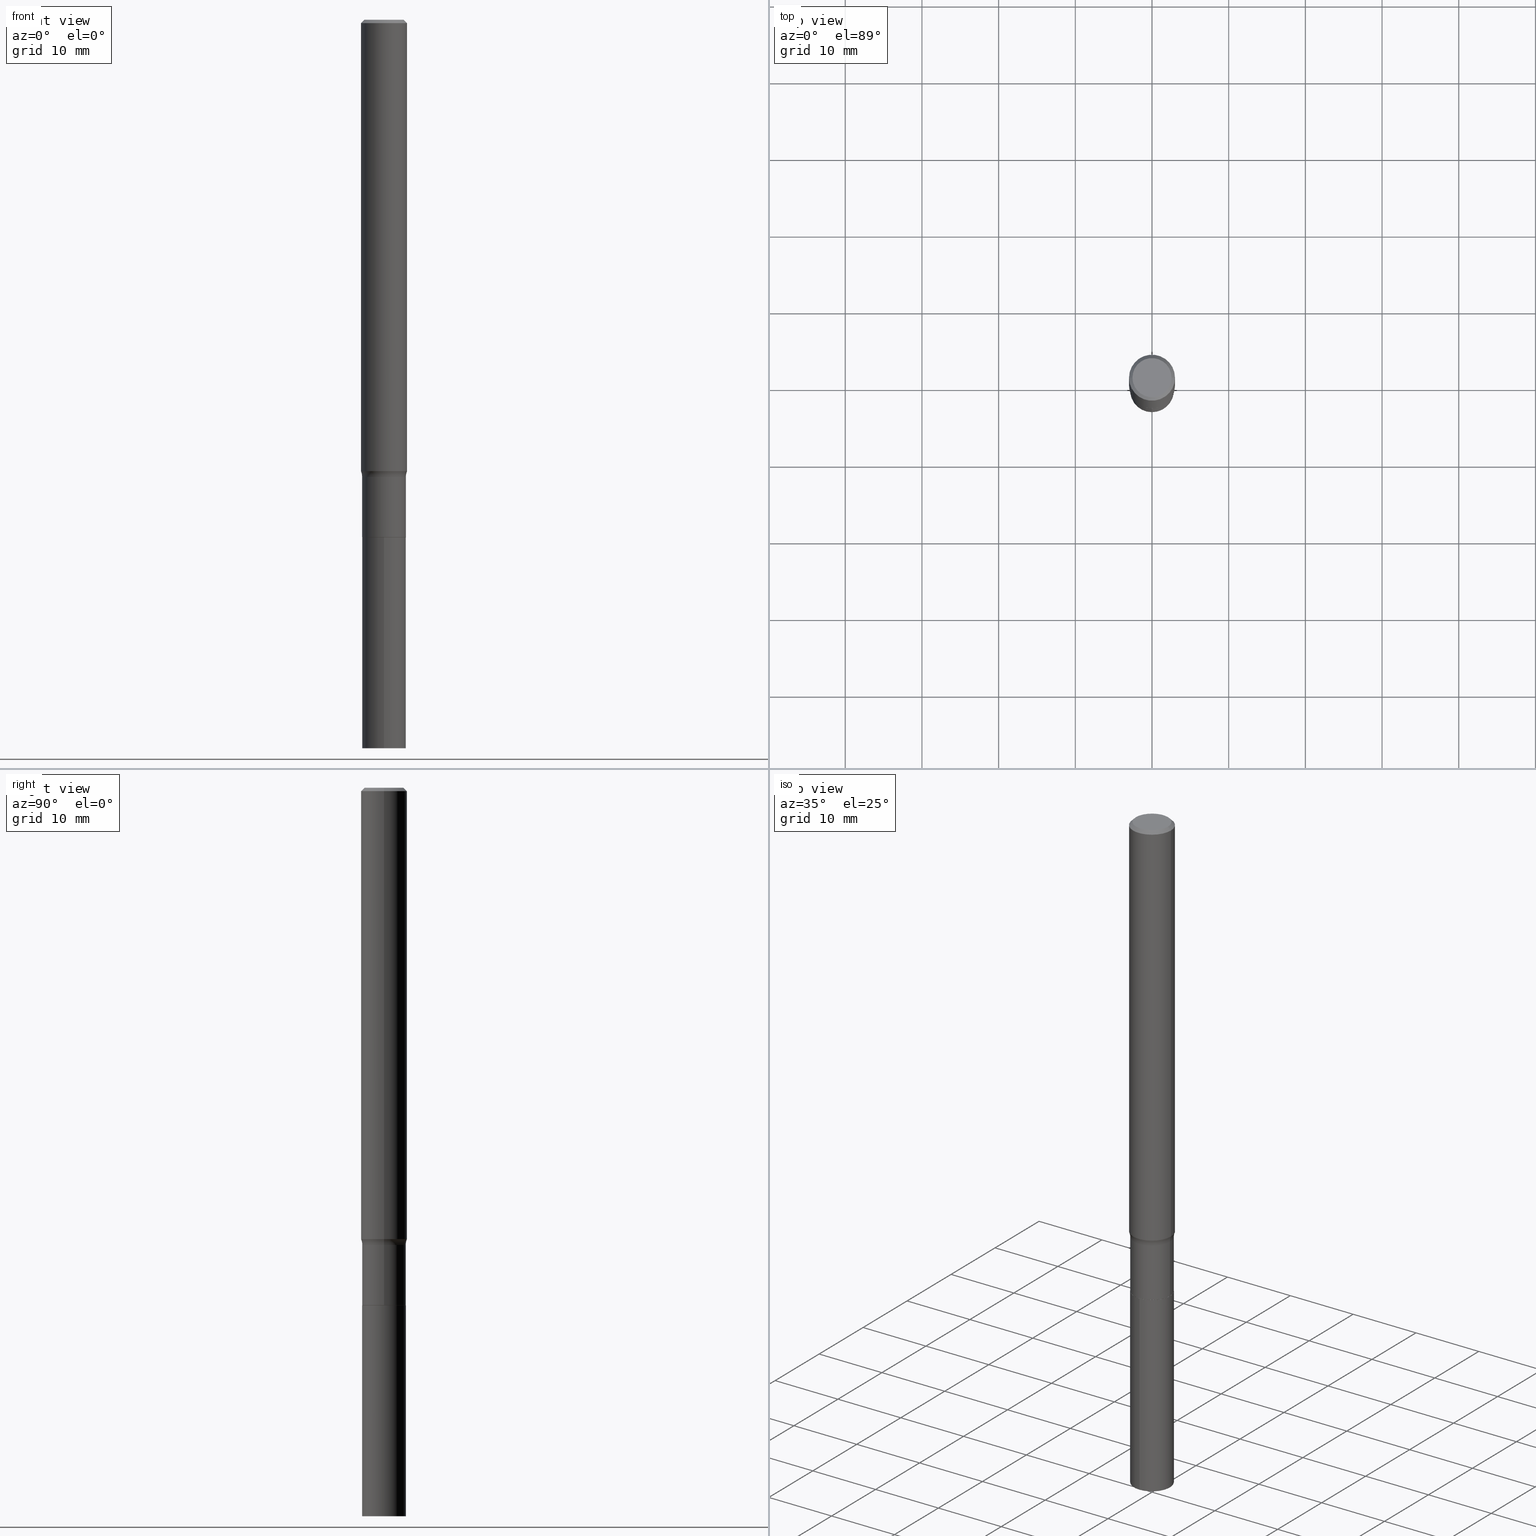
[diagram: canonical four-view strip — front | top / right | iso, engineering-drawing reading convention]
A machine part, canonical four-view strip (front | top / right | iso — engineering-drawing reading convention). The complete STEP part file that produces these views, byte-faithful:
ISO-10303-21;
HEADER;
FILE_DESCRIPTION (( 'STEP AP203' ),
    '1' );
FILE_NAME ('67843.STEP',
    '2024-04-19T16:41:53',
    ( '' ),
    ( '' ),
    'SwSTEP 2.0',
    'SolidWorks 2023',
    '' );
FILE_SCHEMA (( 'CONFIG_CONTROL_DESIGN' ));
ENDSEC;

DATA;
#1 = ORIENTED_EDGE ( 'NONE', *, *, #78, .F. ) ;
#2 = ADVANCED_FACE ( 'NONE', ( #265 ), #373, .F. ) ;
#3 = EDGE_LOOP ( 'NONE', ( #48, #410, #38, #193 ) ) ;
#4 = EDGE_LOOP ( 'NONE', ( #112, #189, #398, #390 ) ) ;
#5 = PERSON_AND_ORGANIZATION ( #21, #51 ) ;
#6 = LINE ( 'NONE', #372, #236 ) ;
#7 = DIRECTION ( 'NONE',  ( -2.445468806185136597E-29, 3.491481338843145583E-15, 1.000000000000000000 ) ) ;
#8 = CIRCLE ( 'NONE', #416, 0.1181000000000003020 ) ;
#9 = DIRECTION ( 'NONE',  ( -2.439359682835014967E-29, 3.500229951190227507E-15, 1.000000000000000000 ) ) ;
#10 = CARTESIAN_POINT ( 'NONE',  ( 5.740738022519607668E-29, -8.196252442934283477E-15, -2.347500000000000142 ) ) ;
#11 = ORIENTED_EDGE ( 'NONE', *, *, #151, .F. ) ;
#12 = DIRECTION ( 'NONE',  ( 2.438088387897960049E-29, -3.491481338843145188E-15, -1.000000000000000000 ) ) ;
#13 = CARTESIAN_POINT ( 'NONE',  ( 7.015701749847187307E-46, -1.001656274515824970E-31, -2.868857591682589212E-17 ) ) ;
#14 = CONICAL_SURFACE ( 'NONE', #412, 0.1181000000000000105, 0.7853981633974458365 ) ;
#15 = ORIENTED_EDGE ( 'NONE', *, *, #219, .F. ) ;
#16 = ORIENTED_EDGE ( 'NONE', *, *, #17, .F. ) ;
#17 = EDGE_CURVE ( 'NONE', #274, #356, #312, .T. ) ;
#18 = CARTESIAN_POINT ( 'NONE',  ( -7.834884124363077914E-16, -0.1122000000000130809, -3.740200000000000191 ) ) ;
#19 = AXIS2_PLACEMENT_3D ( 'NONE', #13, #310, #459 ) ;
#20 = DIRECTION ( 'NONE',  ( -2.445468806185136597E-29, 3.491481338843145583E-15, 1.000000000000000000 ) ) ;
#21 = PERSON ( 'UNSPECIFIED', 'UNSPECIFIED', 'UNSPECIFIED', ('UNSPECIFIED'), ('UNSPECIFIED'), ('UNSPECIFIED') ) ;
#22 = DIRECTION ( 'NONE',  ( 1.000000000000000000, -6.982962677686262766E-15, 0.000000000000000000 ) ) ;
#23 = FACE_OUTER_BOUND ( 'NONE', #395, .T. ) ;
#24 = AXIS2_PLACEMENT_3D ( 'NONE', #276, #9, #376 ) ;
#25 = CALENDAR_DATE ( 2024, 19, 4 ) ;
#26 = CARTESIAN_POINT ( 'NONE',  ( 0.1116999999999999937, -1.005406966333271778E-14, -2.656200000000000117 ) ) ;
#27 = PERSON_AND_ORGANIZATION ( #21, #51 ) ;
#28 = ADVANCED_FACE ( 'NONE', ( #150 ), #131, .T. ) ;
#29 = EDGE_LOOP ( 'NONE', ( #344, #109 ) ) ;
#30 = EDGE_LOOP ( 'NONE', ( #427, #458, #262, #256 ) ) ;
#31 = DIRECTION ( 'NONE',  ( -2.445468806185136877E-29, 3.491481338843145188E-15, 1.000000000000000000 ) ) ;
#32 = CALENDAR_DATE ( 2024, 19, 4 ) ;
#33 = ADVANCED_FACE ( 'NONE', ( #442 ), #242, .F. ) ;
#34 = VERTEX_POINT ( 'NONE', #400 ) ;
#35 = AXIS2_PLACEMENT_3D ( 'NONE', #117, #267, #77 ) ;
#36 = APPROVAL_PERSON_ORGANIZATION ( #461, #132, #144 ) ;
#37 = PERSON_AND_ORGANIZATION_ROLE ( 'classification_officer' ) ;
#38 = ORIENTED_EDGE ( 'NONE', *, *, #245, .T. ) ;
#39 = DIRECTION ( 'NONE',  ( 1.000000000000000000, -6.982962677686267499E-15, 4.876176775795936353E-29 ) ) ;
#40 = CYLINDRICAL_SURFACE ( 'NONE', #89, 0.1181000000000001632 ) ;
#41 = DIRECTION ( 'NONE',  ( -6.982962677686265922E-15, -1.000000000000000000, 3.500229951190227901E-15 ) ) ;
#42 = CARTESIAN_POINT ( 'NONE',  ( 5.667000345357114307E-29, -8.090974582455619643E-15, -2.317347222350170988 ) ) ;
#43 = LOCAL_TIME ( 12, 41, 53.00000000000000000, #429 ) ;
#44 = CC_DESIGN_PERSON_AND_ORGANIZATION_ASSIGNMENT ( #225, #363, ( #217 ) ) ;
#45 = DIRECTION ( 'NONE',  ( 0.7071067811864267805, -2.468850131080992517E-15, 0.7071067811866682540 ) ) ;
#46 = DIRECTION ( 'NONE',  ( -2.439359682835014126E-29, 3.500229951190227901E-15, 1.000000000000000000 ) ) ;
#47 = DESIGN_CONTEXT ( 'detailed design', #457, 'design' ) ;
#48 = ORIENTED_EDGE ( 'NONE', *, *, #343, .F. ) ;
#49 = CC_DESIGN_PERSON_AND_ORGANIZATION_ASSIGNMENT ( #252, #37, ( #90 ) ) ;
#50 = AXIS2_PLACEMENT_3D ( 'NONE', #445, #12, #308 ) ;
#51 = ORGANIZATION ( 'UNSPECIFIED', 'UNSPECIFIED', '' ) ;
#52 = VERTEX_POINT ( 'NONE', #237 ) ;
#53 =( NAMED_UNIT ( * ) SI_UNIT ( $, .STERADIAN. ) SOLID_ANGLE_UNIT ( ) );
#54 = DIRECTION ( 'NONE',  ( -2.439359682835014967E-29, 3.500229951190227507E-15, 1.000000000000000000 ) ) ;
#55 = AXIS2_PLACEMENT_3D ( 'NONE', #10, #159, #303 ) ;
#56 =( LENGTH_UNIT ( ) NAMED_UNIT ( * ) SI_UNIT ( $, .METRE. ) );
#57 = VECTOR ( 'NONE', #206, 39.37007874015748143 ) ;
#58 = DIRECTION ( 'NONE',  ( -2.445468806185136597E-29, 3.491481338843145583E-15, 1.000000000000000000 ) ) ;
#59 = EDGE_CURVE ( 'NONE', #356, #274, #157, .T. ) ;
#60 = FACE_OUTER_BOUND ( 'NONE', #338, .T. ) ;
#61 = EDGE_CURVE ( 'NONE', #266, #34, #306, .T. ) ;
#62 = DIRECTION ( 'NONE',  ( -2.445468806185136597E-29, 3.491481338843145583E-15, 1.000000000000000000 ) ) ;
#63 = ORIENTED_EDGE ( 'NONE', *, *, #245, .F. ) ;
#64 = VECTOR ( 'NONE', #31, 39.37007874015748143 ) ;
#65 = ADVANCED_FACE ( 'NONE', ( #118 ), #345, .F. ) ;
#66 = COORDINATED_UNIVERSAL_TIME_OFFSET ( 5, 0, .BEHIND. ) ;
#67 = ORIENTED_EDGE ( 'NONE', *, *, #94, .F. ) ;
#68 = COORDINATED_UNIVERSAL_TIME_OFFSET ( 5, 0, .BEHIND. ) ;
#69 = DIRECTION ( 'NONE',  ( -2.439359682835014967E-29, 3.500229951190227507E-15, 1.000000000000000000 ) ) ;
#70 = PERSON_AND_ORGANIZATION ( #21, #51 ) ;
#71 = ORIENTED_EDGE ( 'NONE', *, *, #143, .T. ) ;
#72 = AXIS2_PLACEMENT_3D ( 'NONE', #115, #300, #106 ) ;
#73 = CARTESIAN_POINT ( 'NONE',  ( 0.1181000000000001632, -8.246878922347493473E-16, 5.758764772215008848E-30 ) ) ;
#74 = ORIENTED_EDGE ( 'NONE', *, *, #151, .T. ) ;
#75 = CARTESIAN_POINT ( 'NONE',  ( 0.1121999999999999664, -8.979740855370682678E-15, -2.347500000000000142 ) ) ;
#76 = DIRECTION ( 'NONE',  ( -2.439359682835014967E-29, 3.500229951190227901E-15, 1.000000000000000000 ) ) ;
#77 = DIRECTION ( 'NONE',  ( 1.000000000000000000, -6.982962677686262766E-15, 0.000000000000000000 ) ) ;
#78 = EDGE_CURVE ( 'NONE', #52, #141, #320, .T. ) ;
#79 = ORIENTED_EDGE ( 'NONE', *, *, #302, .T. ) ;
#80 = VECTOR ( 'NONE', #76, 39.37007874015748143 ) ;
#81 = CIRCLE ( 'NONE', #284, 0.1122000000000000081 ) ;
#82 = CC_DESIGN_APPROVAL ( #132, ( #90 ) ) ;
#83 = EDGE_CURVE ( 'NONE', #34, #333, #375, .T. ) ;
#84 = DIRECTION ( 'NONE',  ( -2.445468806185136597E-29, 3.491481338843145583E-15, 1.000000000000000000 ) ) ;
#85 = CARTESIAN_POINT ( 'NONE',  ( 6.495654242988960253E-29, -9.274072732235163168E-15, -2.656200000000000117 ) ) ;
#86 = DIRECTION ( 'NONE',  ( 1.000000000000000000, -6.982962677686274599E-15, 0.000000000000000000 ) ) ;
#87 = CARTESIAN_POINT ( 'NONE',  ( 5.667000345357114307E-29, -8.090974582455619643E-15, -2.317347222350170988 ) ) ;
#88 = ORIENTED_EDGE ( 'NONE', *, *, #83, .T. ) ;
#89 = AXIS2_PLACEMENT_3D ( 'NONE', #339, #7, #222 ) ;
#90 = SECURITY_CLASSIFICATION ( '', '', #359 ) ;
#91 = DIRECTION ( 'NONE',  ( -6.982962677686265922E-15, -1.000000000000000000, 4.869604266781217263E-15 ) ) ;
#92 = CARTESIAN_POINT ( 'NONE',  ( -0.1181000000000000105, 7.628363003171415710E-16, -0.01771500000000011607 ) ) ;
#93 = DIRECTION ( 'NONE',  ( 1.000000000000000000, -6.982962677686268288E-15, 4.883557194083112901E-29 ) ) ;
#94 = EDGE_CURVE ( 'NONE', #357, #384, #301, .T. ) ;
#95 = CIRCLE ( 'NONE', #292, 0.1181000000000000105 ) ;
#96 = LOCAL_TIME ( 12, 41, 53.00000000000000000, #68 ) ;
#97 = PLANE ( 'NONE',  #228 ) ;
#98 = CARTESIAN_POINT ( 'NONE',  ( 4.332147990156998495E-31, -6.185159191760672860E-17, -0.01771500000000011607 ) ) ;
#99 = DIRECTION ( 'NONE',  ( 6.982962677686265922E-15, 1.000000000000000000, -3.500229951190227901E-15 ) ) ;
#100 = EDGE_CURVE ( 'NONE', #384, #357, #350, .T. ) ;
#101 = AXIS2_PLACEMENT_3D ( 'NONE', #409, #202, #340 ) ;
#102 = CIRCLE ( 'NONE', #19, 0.1003850000000000159 ) ;
#103 = CC_DESIGN_SECURITY_CLASSIFICATION ( #90, ( #217 ) ) ;
#104 = ORIENTED_EDGE ( 'NONE', *, *, #143, .F. ) ;
#105 = PERSON_AND_ORGANIZATION ( #21, #51 ) ;
#106 = DIRECTION ( 'NONE',  ( 1.000000000000000000, -6.982962677686266711E-15, 4.876176775795936353E-29 ) ) ;
#107 = ORIENTED_EDGE ( 'NONE', *, *, #214, .F. ) ;
#108 = CARTESIAN_POINT ( 'NONE',  ( -0.1181000000000001632, 8.391509709326794790E-16, -5.809262341591051491E-30 ) ) ;
#109 = ORIENTED_EDGE ( 'NONE', *, *, #291, .F. ) ;
#110 = DIRECTION ( 'NONE',  ( -2.445468806185136877E-29, 3.491481338843145188E-15, 1.000000000000000000 ) ) ;
#111 = COORDINATED_UNIVERSAL_TIME_OFFSET ( 5, 0, .BEHIND. ) ;
#112 = ORIENTED_EDGE ( 'NONE', *, *, #100, .T. ) ;
#113 = CONICAL_SURFACE ( 'NONE', #377, 0.1116999999999999937, 0.7853981633972775267 ) ;
#114 = CARTESIAN_POINT ( 'NONE',  ( 6.495654242988960253E-29, -9.274072732235163168E-15, -2.656200000000000117 ) ) ;
#115 = CARTESIAN_POINT ( 'NONE',  ( 0.000000000000000000, 0.000000000000000000, 0.000000000000000000 ) ) ;
#116 = CC_DESIGN_DATE_AND_TIME_ASSIGNMENT ( #426, #261, ( #234 ) ) ;
#117 = CARTESIAN_POINT ( 'NONE',  ( 0.1921999999999999542, -9.538377869585584330E-15, -2.347500000000000142 ) ) ;
#118 = FACE_OUTER_BOUND ( 'NONE', #29, .T. ) ;
#119 = DIRECTION ( 'NONE',  ( 1.000000000000000000, -6.982962677686265922E-15, 4.876176775795935793E-29 ) ) ;
#120 = ORIENTED_EDGE ( 'NONE', *, *, #291, .T. ) ;
#121 = AXIS2_PLACEMENT_3D ( 'NONE', #85, #435, #411 ) ;
#122 = APPROVAL ( #397, 'UNSPECIFIED' ) ;
#123 = CARTESIAN_POINT ( 'NONE',  ( 7.972289495228971524E-16, 0.1121999999999907238, -2.656200000000000561 ) ) ;
#124 = ORIENTED_EDGE ( 'NONE', *, *, #161, .T. ) ;
#125 = CARTESIAN_POINT ( 'NONE',  ( 7.015701749847187307E-46, -1.001656274515824970E-31, -2.868857591682589212E-17 ) ) ;
#126 = EDGE_CURVE ( 'NONE', #137, #366, #215, .T. ) ;
#127 = EDGE_CURVE ( 'NONE', #384, #331, #6, .T. ) ;
#128 =( NAMED_UNIT ( * ) PLANE_ANGLE_UNIT ( ) SI_UNIT ( $, .RADIAN. ) );
#129 = DIRECTION ( 'NONE',  ( 7.105427357601001859E-15, 1.000000000000000000, -3.491481338843145583E-15 ) ) ;
#130 = DIRECTION ( 'NONE',  ( -2.439359682835014967E-29, 3.500229951190227507E-15, 1.000000000000000000 ) ) ;
#131 = CONICAL_SURFACE ( 'NONE', #166, 0.1116999999999999937, 0.7853981633972775267 ) ;
#132 = APPROVAL ( #184, 'UNSPECIFIED' ) ;
#133 = AXIS2_PLACEMENT_3D ( 'NONE', #208, #282, #319 ) ;
#134 = DIRECTION ( 'NONE',  ( 0.7071067811865457964, -7.319954787623249734E-15, -0.7071067811865492381 ) ) ;
#135 = FACE_OUTER_BOUND ( 'NONE', #4, .T. ) ;
#136 = DATE_AND_TIME ( #330, #186 ) ;
#137 = VERTEX_POINT ( 'NONE', #147 ) ;
#138 = AXIS2_PLACEMENT_3D ( 'NONE', #328, #358, #39 ) ;
#139 = DIRECTION ( 'NONE',  ( 2.445468806185136597E-29, -3.491481338843145583E-15, -1.000000000000000000 ) ) ;
#140 = APPROVAL_ROLE ( '' ) ;
#141 = VERTEX_POINT ( 'NONE', #307 ) ;
#142 = DIRECTION ( 'NONE',  ( -1.000000000000000000, 6.982962677686268288E-15, 0.000000000000000000 ) ) ;
#143 = EDGE_CURVE ( 'NONE', #333, #34, #468, .T. ) ;
#144 = APPROVAL_ROLE ( '' ) ;
#145 = CARTESIAN_POINT ( 'NONE',  ( -0.1181000000000003020, -7.251823611522939079E-15, -2.317347222350170988 ) ) ;
#146 = ORIENTED_EDGE ( 'NONE', *, *, #126, .T. ) ;
#147 = CARTESIAN_POINT ( 'NONE',  ( 0.1181000000000003020, -8.915662474690369483E-15, -2.317347222350170988 ) ) ;
#148 = AXIS2_PLACEMENT_3D ( 'NONE', #174, #58, #93 ) ;
#149 = AXIS2_PLACEMENT_3D ( 'NONE', #210, #353, #259 ) ;
#150 = FACE_OUTER_BOUND ( 'NONE', #326, .T. ) ;
#151 = EDGE_CURVE ( 'NONE', #232, #274, #164, .T. ) ;
#152 = ORIENTED_EDGE ( 'NONE', *, *, #205, .F. ) ;
#153 = DIRECTION ( 'NONE',  ( 1.000000000000000000, -6.982962677686266711E-15, 4.875668750515085695E-29 ) ) ;
#154 = ORIENTED_EDGE ( 'NONE', *, *, #83, .F. ) ;
#155 = PRODUCT_RELATED_PRODUCT_CATEGORY ( 'detail', '', ( #381 ) ) ;
#156 = ORIENTED_EDGE ( 'NONE', *, *, #278, .F. ) ;
#157 = CIRCLE ( 'NONE', #55, 0.1121999999999999664 ) ;
#158 = VECTOR ( 'NONE', #110, 39.37007874015748143 ) ;
#159 = DIRECTION ( 'NONE',  ( -2.445468806185136597E-29, 3.491481338843145583E-15, 1.000000000000000000 ) ) ;
#160 = ORIENTED_EDGE ( 'NONE', *, *, #462, .T. ) ;
#161 = EDGE_CURVE ( 'NONE', #361, #240, #95, .T. ) ;
#162 = ORIENTED_EDGE ( 'NONE', *, *, #94, .T. ) ;
#163 = ADVANCED_FACE ( 'NONE', ( #173 ), #97, .F. ) ;
#164 = LINE ( 'NONE', #246, #271 ) ;
#165 = DIRECTION ( 'NONE',  ( 2.445468806185136597E-29, -3.491481338843145583E-15, -1.000000000000000000 ) ) ;
#166 = AXIS2_PLACEMENT_3D ( 'NONE', #199, #84, #347 ) ;
#167 = AXIS2_PLACEMENT_3D ( 'NONE', #220, #69, #182 ) ;
#168 = DIRECTION ( 'NONE',  ( -2.439359682835014967E-29, 3.500229951190227507E-15, 1.000000000000000000 ) ) ;
#169 = ADVANCED_FACE ( 'NONE', ( #60 ), #317, .T. ) ;
#170 = LINE ( 'NONE', #241, #57 ) ;
#171 = CARTESIAN_POINT ( 'NONE',  ( 6.495654242988960253E-29, -9.274072732235163168E-15, -2.656200000000000117 ) ) ;
#172 = APPROVAL ( #188, 'UNSPECIFIED' ) ;
#173 = FACE_OUTER_BOUND ( 'NONE', #327, .T. ) ;
#174 = CARTESIAN_POINT ( 'NONE',  ( 5.740738022519607668E-29, -8.196252442934283477E-15, -2.347500000000000142 ) ) ;
#175 = CARTESIAN_POINT ( 'NONE',  ( 6.495654242988960253E-29, -9.274072732235163168E-15, -2.656200000000000117 ) ) ;
#176 = CIRCLE ( 'NONE', #133, 0.1122000000000000081 ) ;
#177 = COORDINATED_UNIVERSAL_TIME_OFFSET ( 5, 0, .BEHIND. ) ;
#178 = FACE_OUTER_BOUND ( 'NONE', #391, .T. ) ;
#179 = ORIENTED_EDGE ( 'NONE', *, *, #100, .F. ) ;
#180 = CARTESIAN_POINT ( 'NONE',  ( 0.000000000000000000, 0.000000000000000000, 0.000000000000000000 ) ) ;
#181 = ORIENTED_EDGE ( 'NONE', *, *, #431, .T. ) ;
#182 = DIRECTION ( 'NONE',  ( -6.982962677686265133E-15, -1.000000000000000000, 4.869604266781217263E-15 ) ) ;
#183 = DIRECTION ( 'NONE',  ( -2.439359682835014967E-29, 3.500229951190227507E-15, 1.000000000000000000 ) ) ;
#184 = APPROVAL_STATUS ( 'not_yet_approved' ) ;
#185 = TOROIDAL_SURFACE ( 'NONE', #348, 0.1921999999999999542, 0.07999999999999996003 ) ;
#186 = LOCAL_TIME ( 12, 41, 53.00000000000000000, #66 ) ;
#187 = FACE_OUTER_BOUND ( 'NONE', #294, .T. ) ;
#188 = APPROVAL_STATUS ( 'not_yet_approved' ) ;
#189 = ORIENTED_EDGE ( 'NONE', *, *, #229, .T. ) ;
#190 = FACE_OUTER_BOUND ( 'NONE', #253, .T. ) ;
#191 = DIRECTION ( 'NONE',  ( -6.982962677686265922E-15, -1.000000000000000000, 4.869604266781217263E-15 ) ) ;
#192 = CC_DESIGN_PERSON_AND_ORGANIZATION_ASSIGNMENT ( #5, #293, ( #234 ) ) ;
#193 = ORIENTED_EDGE ( 'NONE', *, *, #420, .F. ) ;
#194 = ORIENTED_EDGE ( 'NONE', *, *, #78, .T. ) ;
#195 = DIRECTION ( 'NONE',  ( -2.438088387897960049E-29, 3.491481338843145188E-15, 1.000000000000000000 ) ) ;
#196 = VECTOR ( 'NONE', #212, 39.37007874015748143 ) ;
#197 = DIRECTION ( 'NONE',  ( -2.445468806185136597E-29, 3.491481338843145583E-15, 1.000000000000000000 ) ) ;
#198 = MANIFOLD_SOLID_BREP ( 'Body-Move/Copy2[1]', #203 ) ;
#199 = CARTESIAN_POINT ( 'NONE',  ( 6.495654242988960253E-29, -9.274072732235163168E-15, -2.656200000000000117 ) ) ;
#200 = DIRECTION ( 'NONE',  ( 1.000000000000000000, -6.982962677686262766E-15, 0.000000000000000000 ) ) ;
#201 = CARTESIAN_POINT ( 'NONE',  ( 0.1122000000000000081, -1.005581540400214008E-14, -2.655699999999999950 ) ) ;
#202 = DIRECTION ( 'NONE',  ( -2.445468806185136597E-29, 3.491481338843145583E-15, 1.000000000000000000 ) ) ;
#203 = CLOSED_SHELL ( 'NONE', ( #367, #65, #447, #163 ) ) ;
#204 = CARTESIAN_POINT ( 'NONE',  ( -7.834884124363341196E-16, -0.1122000000000092784, -2.656199999999999228 ) ) ;
#205 = EDGE_CURVE ( 'NONE', #141, #240, #321, .T. ) ;
#206 = DIRECTION ( 'NONE',  ( -0.7071067811864267805, 7.493145998869918709E-15, 0.7071067811866682540 ) ) ;
#207 = AXIS2_PLACEMENT_3D ( 'NONE', #87, #235, #337 ) ;
#208 = CARTESIAN_POINT ( 'NONE',  ( 6.494431508585867452E-29, -9.272326991565740875E-15, -2.655699999999999950 ) ) ;
#209 = CC_DESIGN_PERSON_AND_ORGANIZATION_ASSIGNMENT ( #27, #368, ( #381 ) ) ;
#210 = CARTESIAN_POINT ( 'NONE',  ( 0.000000000000000000, 0.000000000000000000, 0.000000000000000000 ) ) ;
#211 = DIRECTION ( 'NONE',  ( 1.000000000000000000, -6.982962677686266711E-15, 4.876176775795936353E-29 ) ) ;
#212 = DIRECTION ( 'NONE',  ( -0.7071067811865457964, 2.468850131082238917E-15, -0.7071067811865492381 ) ) ;
#213 = LINE ( 'NONE', #460, #251 ) ;
#214 = EDGE_CURVE ( 'NONE', #232, #331, #81, .T. ) ;
#215 = CIRCLE ( 'NONE', #207, 0.1181000000000003020 ) ;
#216 = MECHANICAL_CONTEXT ( 'NONE', #221, 'mechanical' ) ;
#217 = PRODUCT_DEFINITION_FORMATION_WITH_SPECIFIED_SOURCE ( 'ANY', '', #381, .NOT_KNOWN. ) ;
#218 = EDGE_LOOP ( 'NONE', ( #181, #74, #273, #408 ) ) ;
#219 = EDGE_CURVE ( 'NONE', #430, #333, #213, .T. ) ;
#220 = CARTESIAN_POINT ( 'NONE',  ( 6.495654242988960253E-29, -9.274072732235163168E-15, -2.656200000000000117 ) ) ;
#221 = APPLICATION_CONTEXT ( 'configuration controlled 3d designs of mechanical parts and assemblies' ) ;
#222 = DIRECTION ( 'NONE',  ( 1.000000000000000000, -6.982962677686267499E-15, 4.876176775795936353E-29 ) ) ;
#223 = APPROVAL_DATE_TIME ( #287, #122 ) ;
#224 = ORIENTED_EDGE ( 'NONE', *, *, #343, .T. ) ;
#225 = PERSON_AND_ORGANIZATION ( #21, #51 ) ;
#226 = ORIENTED_EDGE ( 'NONE', *, *, #229, .F. ) ;
#227 = FACE_OUTER_BOUND ( 'NONE', #218, .T. ) ;
#228 = AXIS2_PLACEMENT_3D ( 'NONE', #175, #288, #99 ) ;
#229 = EDGE_CURVE ( 'NONE', #357, #232, #170, .T. ) ;
#230 = AXIS2_PLACEMENT_3D ( 'NONE', #98, #165, #311 ) ;
#231 = ORIENTED_EDGE ( 'NONE', *, *, #214, .T. ) ;
#232 = VERTEX_POINT ( 'NONE', #453 ) ;
#233 = CARTESIAN_POINT ( 'NONE',  ( 4.332147990156998495E-31, -6.185159191760672860E-17, -0.01771500000000011607 ) ) ;
#234 = PRODUCT_DEFINITION ( 'UNKNOWN', '', #217, #47 ) ;
#235 = DIRECTION ( 'NONE',  ( -2.445468806185136597E-29, 3.491481338843145583E-15, 1.000000000000000000 ) ) ;
#236 = VECTOR ( 'NONE', #45, 39.37007874015748143 ) ;
#237 = CARTESIAN_POINT ( 'NONE',  ( -0.1003850000000000159, 7.319105043583387675E-16, -2.868857591683090262E-17 ) ) ;
#238 = ORIENTED_EDGE ( 'NONE', *, *, #59, .T. ) ;
#239 = EDGE_CURVE ( 'NONE', #366, #274, #385, .T. ) ;
#240 = VERTEX_POINT ( 'NONE', #341 ) ;
#241 = CARTESIAN_POINT ( 'NONE',  ( -0.1116999999999999937, -8.480396496391130319E-15, -2.656200000000000117 ) ) ;
#242 = PLANE ( 'NONE',  #50 ) ;
#243 = AXIS2_PLACEMENT_3D ( 'NONE', #125, #309, #153 ) ;
#244 = AXIS2_PLACEMENT_3D ( 'NONE', #180, #275, #211 ) ;
#245 = EDGE_CURVE ( 'NONE', #240, #361, #434, .T. ) ;
#246 = CARTESIAN_POINT ( 'NONE',  ( -0.1121999999999999803, 7.972289495228322686E-16, -5.519045171266003720E-30 ) ) ;
#247 = CYLINDRICAL_SURFACE ( 'NONE', #455, 0.1122000000000000081 ) ;
#248 = CIRCLE ( 'NONE', #405, 0.1122000000000000219 ) ;
#249 = CARTESIAN_POINT ( 'NONE',  ( 6.494431508585867452E-29, -9.272326991565740875E-15, -2.655699999999999950 ) ) ;
#250 = ADVANCED_FACE ( 'NONE', ( #388 ), #14, .T. ) ;
#251 = VECTOR ( 'NONE', #374, 39.37007874015748143 ) ;
#252 = PERSON_AND_ORGANIZATION ( #21, #51 ) ;
#253 = EDGE_LOOP ( 'NONE', ( #160, #365, #104, #15 ) ) ;
#254 = ADVANCED_FACE ( 'NONE', ( #187 ), #438, .T. ) ;
#255 = APPROVAL_ROLE ( '' ) ;
#256 = ORIENTED_EDGE ( 'NONE', *, *, #161, .F. ) ;
#257 = CARTESIAN_POINT ( 'NONE',  ( 7.972289495229104644E-16, 0.1121999999999869629, -3.740200000000001079 ) ) ;
#258 = EDGE_CURVE ( 'NONE', #331, #356, #428, .T. ) ;
#259 = DIRECTION ( 'NONE',  ( 1.000000000000000000, 0.000000000000000000, 0.000000000000000000 ) ) ;
#260 = CARTESIAN_POINT ( 'NONE',  ( -0.1116999999999999937, -8.477747269217019907E-15, -2.656200000000000117 ) ) ;
#261 = DATE_TIME_ROLE ( 'creation_date' ) ;
#262 = ORIENTED_EDGE ( 'NONE', *, *, #278, .T. ) ;
#263 = CYLINDRICAL_SURFACE ( 'NONE', #167, 0.1122000000000000081 ) ;
#264 = CARTESIAN_POINT ( 'NONE',  ( 4.332147990156998495E-31, -6.185159191760672860E-17, -0.01771500000000011607 ) ) ;
#265 = FACE_OUTER_BOUND ( 'NONE', #423, .T. ) ;
#266 = VERTEX_POINT ( 'NONE', #257 ) ;
#267 = DIRECTION ( 'NONE',  ( -6.982962677686266711E-15, -1.000000000000000000, 3.491481338843145583E-15 ) ) ;
#268 = EDGE_CURVE ( 'NONE', #366, #361, #305, .T. ) ;
#269 = CARTESIAN_POINT ( 'NONE',  ( 6.495654242988960253E-29, -9.274072732235163168E-15, -2.656200000000000117 ) ) ;
#270 = ORIENTED_EDGE ( 'NONE', *, *, #258, .T. ) ;
#271 = VECTOR ( 'NONE', #286, 39.37007874015748143 ) ;
#272 = CC_DESIGN_APPROVAL ( #122, ( #217 ) ) ;
#273 = ORIENTED_EDGE ( 'NONE', *, *, #59, .F. ) ;
#274 = VERTEX_POINT ( 'NONE', #424 ) ;
#275 = DIRECTION ( 'NONE',  ( -2.445468806185136597E-29, 3.491481338843145583E-15, 1.000000000000000000 ) ) ;
#276 = CARTESIAN_POINT ( 'NONE',  ( 6.495654242988960253E-29, -9.274072732235163168E-15, -2.656200000000000117 ) ) ;
#277 = DIRECTION ( 'NONE',  ( -6.982962677686265133E-15, -1.000000000000000000, 4.869604266781217263E-15 ) ) ;
#278 = EDGE_CURVE ( 'NONE', #137, #240, #392, .T. ) ;
#279 = VECTOR ( 'NONE', #134, 39.37007874015748143 ) ;
#280 = LOCAL_TIME ( 12, 41, 53.00000000000000000, #177 ) ;
#281 = APPLICATION_PROTOCOL_DEFINITION ( 'international standard', 'config_control_design', 1994, #221 ) ;
#282 = DIRECTION ( 'NONE',  ( -2.445468806185136597E-29, 3.491481338843145583E-15, 1.000000000000000000 ) ) ;
#283 = DIRECTION ( 'NONE',  ( -1.000000000000000000, 7.105427357601001859E-15, 0.000000000000000000 ) ) ;
#284 = AXIS2_PLACEMENT_3D ( 'NONE', #249, #62, #86 ) ;
#285 =( GEOMETRIC_REPRESENTATION_CONTEXT ( 3 ) GLOBAL_UNCERTAINTY_ASSIGNED_CONTEXT ( ( #378 ) ) GLOBAL_UNIT_ASSIGNED_CONTEXT ( ( #451, #128, #53 ) ) REPRESENTATION_CONTEXT ( 'NONE', 'WORKASPACE' ) );
#286 = DIRECTION ( 'NONE',  ( -2.445468806185136877E-29, 3.491481338843145188E-15, 1.000000000000000000 ) ) ;
#287 = DATE_AND_TIME ( #25, #96 ) ;
#288 = DIRECTION ( 'NONE',  ( 2.439359682835014126E-29, -3.500229951190227901E-15, -1.000000000000000000 ) ) ;
#289 = APPROVAL_DATE_TIME ( #136, #132 ) ;
#290 = DIRECTION ( 'NONE',  ( 1.000000000000000000, -6.982962677686271444E-15, 0.000000000000000000 ) ) ;
#291 = EDGE_CURVE ( 'NONE', #266, #430, #248, .T. ) ;
#292 = AXIS2_PLACEMENT_3D ( 'NONE', #382, #464, #418 ) ;
#293 = PERSON_AND_ORGANIZATION_ROLE ( 'creator' ) ;
#294 = EDGE_LOOP ( 'NONE', ( #146, #463, #63, #156 ) ) ;
#295 = ORIENTED_EDGE ( 'NONE', *, *, #318, .F. ) ;
#296 = ADVANCED_FACE ( 'NONE', ( #335 ), #40, .T. ) ;
#297 = ORIENTED_EDGE ( 'NONE', *, *, #239, .T. ) ;
#298 = ORIENTED_EDGE ( 'NONE', *, *, #239, .F. ) ;
#299 = APPLICATION_PROTOCOL_DEFINITION ( 'international standard', 'config_control_design', 1994, #457 ) ;
#300 = DIRECTION ( 'NONE',  ( -2.445468806185136597E-29, 3.491481338843145583E-15, 1.000000000000000000 ) ) ;
#301 = CIRCLE ( 'NONE', #354, 0.1116999999999999937 ) ;
#302 = EDGE_CURVE ( 'NONE', #137, #356, #355, .T. ) ;
#303 = DIRECTION ( 'NONE',  ( 1.000000000000000000, -6.982962677686260400E-15, 0.000000000000000000 ) ) ;
#304 = CARTESIAN_POINT ( 'NONE',  ( -0.1181000000000000105, -3.237262116253930779E-15, -0.01771500000000011607 ) ) ;
#305 = LINE ( 'NONE', #108, #64 ) ;
#306 = LINE ( 'NONE', #123, #80 ) ;
#307 = CARTESIAN_POINT ( 'NONE',  ( 0.1003850000000000159, -7.803837484803599345E-16, -2.868857591682071522E-17 ) ) ;
#308 = DIRECTION ( 'NONE',  ( -1.000000000000000000, 6.982962677686265922E-15, -4.876176775795935793E-29 ) ) ;
#309 = DIRECTION ( 'NONE',  ( -2.445468806185136597E-29, 3.491481338843145583E-15, 1.000000000000000000 ) ) ;
#310 = DIRECTION ( 'NONE',  ( -2.445468806185136597E-29, 3.491481338843145583E-15, 1.000000000000000000 ) ) ;
#311 = DIRECTION ( 'NONE',  ( -1.000000000000000000, 6.982962677686268288E-15, 0.000000000000000000 ) ) ;
#312 = CIRCLE ( 'NONE', #101, 0.1121999999999999664 ) ;
#313 = TOROIDAL_SURFACE ( 'NONE', #148, 0.1921999999999999542, 0.07999999999999996003 ) ;
#314 = LOCAL_TIME ( 12, 41, 53.00000000000000000, #111 ) ;
#315 = FACE_OUTER_BOUND ( 'NONE', #325, .T. ) ;
#316 = LENGTH_MEASURE_WITH_UNIT ( LENGTH_MEASURE( 0.02539999999999999897 ), #56 );
#317 = CYLINDRICAL_SURFACE ( 'NONE', #244, 0.1121999999999999803 ) ;
#318 = EDGE_CURVE ( 'NONE', #366, #137, #8, .T. ) ;
#319 = DIRECTION ( 'NONE',  ( 1.000000000000000000, -6.982962677686274599E-15, 0.000000000000000000 ) ) ;
#320 = CIRCLE ( 'NONE', #243, 0.1003850000000000159 ) ;
#321 = LINE ( 'NONE', #323, #279 ) ;
#322 = CIRCLE ( 'NONE', #449, 0.1122000000000000219 ) ;
#323 = CARTESIAN_POINT ( 'NONE',  ( 0.1181000000000000105, -8.720764054544246253E-16, -0.01771500000000011607 ) ) ;
#324 = DATE_TIME_ROLE ( 'classification_date' ) ;
#325 = EDGE_LOOP ( 'NONE', ( #295, #297, #360, #439 ) ) ;
#326 = EDGE_LOOP ( 'NONE', ( #226, #162, #422, #107 ) ) ;
#327 = EDGE_LOOP ( 'NONE', ( #71, #88 ) ) ;
#328 = CARTESIAN_POINT ( 'NONE',  ( 0.000000000000000000, 0.000000000000000000, 0.000000000000000000 ) ) ;
#329 = CLOSED_SHELL ( 'NONE', ( #450, #250, #254, #444, #371, #169, #394, #296, #467, #33, #2, #28 ) ) ;
#330 = CALENDAR_DATE ( 2024, 19, 4 ) ;
#331 = VERTEX_POINT ( 'NONE', #201 ) ;
#332 = DATE_AND_TIME ( #387, #280 ) ;
#333 = VERTEX_POINT ( 'NONE', #204 ) ;
#334 = EDGE_LOOP ( 'NONE', ( #152, #1, #433, #124 ) ) ;
#335 = FACE_OUTER_BOUND ( 'NONE', #30, .T. ) ;
#336 = DATE_AND_TIME ( #393, #43 ) ;
#337 = DIRECTION ( 'NONE',  ( 1.000000000000000000, -6.982962677686271444E-15, 0.000000000000000000 ) ) ;
#338 = EDGE_LOOP ( 'NONE', ( #11, #231, #270, #16 ) ) ;
#339 = CARTESIAN_POINT ( 'NONE',  ( 0.000000000000000000, 0.000000000000000000, 0.000000000000000000 ) ) ;
#340 = DIRECTION ( 'NONE',  ( 1.000000000000000000, -6.982962677686260400E-15, 0.000000000000000000 ) ) ;
#341 = CARTESIAN_POINT ( 'NONE',  ( 0.1181000000000000105, -8.865394841523548556E-16, -0.01771500000000011607 ) ) ;
#342 = EDGE_LOOP ( 'NONE', ( #194, #224 ) ) ;
#343 = EDGE_CURVE ( 'NONE', #141, #52, #102, .T. ) ;
#344 = ORIENTED_EDGE ( 'NONE', *, *, #462, .F. ) ;
#345 = PLANE ( 'NONE',  #415 ) ;
#346 = MANIFOLD_SOLID_BREP ( 'Body-Move/Copy2[2]', #329 ) ;
#347 = DIRECTION ( 'NONE',  ( 1.000000000000000000, -6.982962677686262766E-15, 0.000000000000000000 ) ) ;
#348 = AXIS2_PLACEMENT_3D ( 'NONE', #417, #20, #456 ) ;
#349 = DIRECTION ( 'NONE',  ( -2.445468806185136597E-29, 3.491481338843145583E-15, 1.000000000000000000 ) ) ;
#350 = CIRCLE ( 'NONE', #121, 0.1116999999999999937 ) ;
#351 = CARTESIAN_POINT ( 'NONE',  ( -0.1921999999999999542, -6.830589304803371442E-15, -2.347500000000000142 ) ) ;
#352 = CC_DESIGN_APPROVAL ( #172, ( #234 ) ) ;
#353 = DIRECTION ( 'NONE',  ( 0.000000000000000000, 0.000000000000000000, 1.000000000000000000 ) ) ;
#354 = AXIS2_PLACEMENT_3D ( 'NONE', #269, #403, #200 ) ;
#355 = CIRCLE ( 'NONE', #35, 0.07999999999999996003 ) ;
#356 = VERTEX_POINT ( 'NONE', #75 ) ;
#357 = VERTEX_POINT ( 'NONE', #260 ) ;
#358 = DIRECTION ( 'NONE',  ( -2.445468806185136597E-29, 3.491481338843145583E-15, 1.000000000000000000 ) ) ;
#359 = SECURITY_CLASSIFICATION_LEVEL ( 'unclassified' ) ;
#360 = ORIENTED_EDGE ( 'NONE', *, *, #17, .T. ) ;
#361 = VERTEX_POINT ( 'NONE', #304 ) ;
#362 = AXIS2_PLACEMENT_3D ( 'NONE', #351, #129, #283 ) ;
#363 = PERSON_AND_ORGANIZATION_ROLE ( 'creator' ) ;
#364 = APPROVAL_PERSON_ORGANIZATION ( #105, #172, #140 ) ;
#365 = ORIENTED_EDGE ( 'NONE', *, *, #61, .T. ) ;
#366 = VERTEX_POINT ( 'NONE', #145 ) ;
#367 = ADVANCED_FACE ( 'NONE', ( #190 ), #263, .T. ) ;
#368 = PERSON_AND_ORGANIZATION_ROLE ( 'design_owner' ) ;
#369 = DIRECTION ( 'NONE',  ( -2.445468806185136877E-29, 3.491481338843145188E-15, 1.000000000000000000 ) ) ;
#370 = CARTESIAN_POINT ( 'NONE',  ( -3.571732710316454868E-29, -3.127213238215624711E-14, -3.740200000000000635 ) ) ;
#371 = ADVANCED_FACE ( 'NONE', ( #227 ), #436, .T. ) ;
#372 = CARTESIAN_POINT ( 'NONE',  ( 0.1116999999999999937, -1.005406966333271778E-14, -2.656200000000000117 ) ) ;
#373 = PLANE ( 'NONE',  #448 ) ;
#374 = DIRECTION ( 'NONE',  ( -2.439359682835014967E-29, 3.500229951190227901E-15, 1.000000000000000000 ) ) ;
#375 = CIRCLE ( 'NONE', #24, 0.1122000000000000081 ) ;
#376 = DIRECTION ( 'NONE',  ( -6.982962677686265133E-15, -1.000000000000000000, 4.869604266781217263E-15 ) ) ;
#377 = AXIS2_PLACEMENT_3D ( 'NONE', #171, #349, #22 ) ;
#378 = UNCERTAINTY_MEASURE_WITH_UNIT (LENGTH_MEASURE( 1.000000000000000082E-05 ), #451, 'distance_accuracy_value', 'NONE');
#379 = CARTESIAN_POINT ( 'NONE',  ( 9.139920139182118548E-29, -1.306832199932537301E-14, -3.740200000000000635 ) ) ;
#380 = AXIS2_PLACEMENT_3D ( 'NONE', #264, #396, #399 ) ;
#381 = PRODUCT ( '67843', '67843', '', ( #216 ) ) ;
#382 = CARTESIAN_POINT ( 'NONE',  ( 4.332147990156998495E-31, -6.185159191760672860E-17, -0.01771500000000011607 ) ) ;
#383 = FACE_OUTER_BOUND ( 'NONE', #334, .T. ) ;
#384 = VERTEX_POINT ( 'NONE', #26 ) ;
#385 = CIRCLE ( 'NONE', #362, 0.07999999999999996003 ) ;
#386 = APPROVAL_PERSON_ORGANIZATION ( #70, #122, #255 ) ;
#387 = CALENDAR_DATE ( 2024, 19, 4 ) ;
#388 = FACE_OUTER_BOUND ( 'NONE', #3, .T. ) ;
#389 = PERSON_AND_ORGANIZATION_ROLE ( 'design_supplier' ) ;
#390 = ORIENTED_EDGE ( 'NONE', *, *, #127, .F. ) ;
#391 = EDGE_LOOP ( 'NONE', ( #298, #404, #79, #238 ) ) ;
#392 = LINE ( 'NONE', #73, #425 ) ;
#393 = CALENDAR_DATE ( 2024, 19, 4 ) ;
#394 = ADVANCED_FACE ( 'NONE', ( #178 ), #185, .F. ) ;
#395 = EDGE_LOOP ( 'NONE', ( #406, #120, #465, #154 ) ) ;
#396 = DIRECTION ( 'NONE',  ( -2.445468806185136597E-29, 3.491481338843145583E-15, 1.000000000000000000 ) ) ;
#397 = APPROVAL_STATUS ( 'not_yet_approved' ) ;
#398 = ORIENTED_EDGE ( 'NONE', *, *, #431, .F. ) ;
#399 = DIRECTION ( 'NONE',  ( 1.000000000000000000, -6.982962677686265922E-15, 0.000000000000000000 ) ) ;
#400 = CARTESIAN_POINT ( 'NONE',  ( 7.972289495229238751E-16, 0.1121999999999907238, -2.656200000000000561 ) ) ;
#401 = CARTESIAN_POINT ( 'NONE',  ( 0.1121999999999999803, -7.834884124363990034E-16, 5.471070342443039545E-30 ) ) ;
#402 = DIMENSIONAL_EXPONENTS ( 1.000000000000000000, 0.000000000000000000, 0.000000000000000000, 0.000000000000000000, 0.000000000000000000, 0.000000000000000000, 0.000000000000000000 ) ;
#403 = DIRECTION ( 'NONE',  ( -2.445468806185136597E-29, 3.491481338843145583E-15, 1.000000000000000000 ) ) ;
#404 = ORIENTED_EDGE ( 'NONE', *, *, #126, .F. ) ;
#405 = AXIS2_PLACEMENT_3D ( 'NONE', #466, #183, #191 ) ;
#406 = ORIENTED_EDGE ( 'NONE', *, *, #61, .F. ) ;
#407 = LINE ( 'NONE', #92, #196 ) ;
#408 = ORIENTED_EDGE ( 'NONE', *, *, #258, .F. ) ;
#409 = CARTESIAN_POINT ( 'NONE',  ( 5.740738022519607668E-29, -8.196252442934283477E-15, -2.347500000000000142 ) ) ;
#410 = ORIENTED_EDGE ( 'NONE', *, *, #205, .T. ) ;
#411 = DIRECTION ( 'NONE',  ( 1.000000000000000000, -6.982962677686262766E-15, 0.000000000000000000 ) ) ;
#412 = AXIS2_PLACEMENT_3D ( 'NONE', #233, #139, #142 ) ;
#413 = CARTESIAN_POINT ( 'NONE',  ( 6.495654242988960253E-29, -9.274072732235163168E-15, -2.656200000000000117 ) ) ;
#414 = CC_DESIGN_DATE_AND_TIME_ASSIGNMENT ( #332, #324, ( #90 ) ) ;
#415 = AXIS2_PLACEMENT_3D ( 'NONE', #370, #46, #41 ) ;
#416 = AXIS2_PLACEMENT_3D ( 'NONE', #42, #197, #290 ) ;
#417 = CARTESIAN_POINT ( 'NONE',  ( 5.740738022519607668E-29, -8.196252442934283477E-15, -2.347500000000000142 ) ) ;
#418 = DIRECTION ( 'NONE',  ( 1.000000000000000000, -6.982962677686265922E-15, 0.000000000000000000 ) ) ;
#419 = PERSON_AND_ORGANIZATION ( #21, #51 ) ;
#420 = EDGE_CURVE ( 'NONE', #52, #361, #407, .T. ) ;
#421 = SHAPE_DEFINITION_REPRESENTATION ( #446, #437 ) ;
#422 = ORIENTED_EDGE ( 'NONE', *, *, #127, .T. ) ;
#423 = EDGE_LOOP ( 'NONE', ( #179, #67 ) ) ;
#424 = CARTESIAN_POINT ( 'NONE',  ( -0.1121999999999999664, -7.937060767727180795E-15, -2.347500000000000142 ) ) ;
#425 = VECTOR ( 'NONE', #369, 39.37007874015748143 ) ;
#426 = DATE_AND_TIME ( #32, #314 ) ;
#427 = ORIENTED_EDGE ( 'NONE', *, *, #268, .F. ) ;
#428 = LINE ( 'NONE', #401, #158 ) ;
#429 = COORDINATED_UNIVERSAL_TIME_OFFSET ( 5, 0, .BEHIND. ) ;
#430 = VERTEX_POINT ( 'NONE', #18 ) ;
#431 = EDGE_CURVE ( 'NONE', #331, #232, #176, .T. ) ;
#432 = APPROVAL_DATE_TIME ( #336, #172 ) ;
#433 = ORIENTED_EDGE ( 'NONE', *, *, #420, .T. ) ;
#434 = CIRCLE ( 'NONE', #380, 0.1181000000000000105 ) ;
#435 = DIRECTION ( 'NONE',  ( -2.445468806185136597E-29, 3.491481338843145583E-15, 1.000000000000000000 ) ) ;
#436 = CYLINDRICAL_SURFACE ( 'NONE', #72, 0.1121999999999999803 ) ;
#437 = ADVANCED_BREP_SHAPE_REPRESENTATION ( '67843', ( #198, #346, #149 ), #285 ) ;
#438 = CYLINDRICAL_SURFACE ( 'NONE', #138, 0.1181000000000001632 ) ;
#439 = ORIENTED_EDGE ( 'NONE', *, *, #302, .F. ) ;
#440 = CARTESIAN_POINT ( 'NONE',  ( 6.495654242988960253E-29, -9.274072732235163168E-15, -2.656200000000000117 ) ) ;
#441 = AXIS2_PLACEMENT_3D ( 'NONE', #440, #168, #277 ) ;
#442 = FACE_OUTER_BOUND ( 'NONE', #342, .T. ) ;
#443 = CONICAL_SURFACE ( 'NONE', #230, 0.1181000000000000105, 0.7853981633974458365 ) ;
#444 = ADVANCED_FACE ( 'NONE', ( #315 ), #313, .F. ) ;
#445 = CARTESIAN_POINT ( 'NONE',  ( 3.507850874923593654E-46, -5.008281372579124849E-32, -1.434428795841294606E-17 ) ) ;
#446 = PRODUCT_DEFINITION_SHAPE ( 'NONE', 'NONE',  #234 ) ;
#447 = ADVANCED_FACE ( 'NONE', ( #23 ), #247, .T. ) ;
#448 = AXIS2_PLACEMENT_3D ( 'NONE', #114, #195, #119 ) ;
#449 = AXIS2_PLACEMENT_3D ( 'NONE', #379, #54, #91 ) ;
#450 = ADVANCED_FACE ( 'NONE', ( #135 ), #113, .T. ) ;
#451 =( CONVERSION_BASED_UNIT ( 'INCH', #316 ) LENGTH_UNIT ( ) NAMED_UNIT ( #402 ) );
#452 = CC_DESIGN_PERSON_AND_ORGANIZATION_ASSIGNMENT ( #419, #389, ( #217 ) ) ;
#453 = CARTESIAN_POINT ( 'NONE',  ( -0.1122000000000000081, -7.937060767727180795E-15, -2.655699999999999950 ) ) ;
#454 = DIRECTION ( 'NONE',  ( -6.982962677686265133E-15, -1.000000000000000000, 4.869604266781217263E-15 ) ) ;
#455 = AXIS2_PLACEMENT_3D ( 'NONE', #413, #130, #454 ) ;
#456 = DIRECTION ( 'NONE',  ( 1.000000000000000000, -6.982962677686268288E-15, 4.883557194083112901E-29 ) ) ;
#457 = APPLICATION_CONTEXT ( 'configuration controlled 3d designs of mechanical parts and assemblies' ) ;
#458 = ORIENTED_EDGE ( 'NONE', *, *, #318, .T. ) ;
#459 = DIRECTION ( 'NONE',  ( 1.000000000000000000, -6.982962677686266711E-15, 4.875668750515085695E-29 ) ) ;
#460 = CARTESIAN_POINT ( 'NONE',  ( -7.834884124363341196E-16, -0.1122000000000092784, -2.656199999999999228 ) ) ;
#461 = PERSON_AND_ORGANIZATION ( #21, #51 ) ;
#462 = EDGE_CURVE ( 'NONE', #430, #266, #322, .T. ) ;
#463 = ORIENTED_EDGE ( 'NONE', *, *, #268, .T. ) ;
#464 = DIRECTION ( 'NONE',  ( -2.445468806185136597E-29, 3.491481338843145583E-15, 1.000000000000000000 ) ) ;
#465 = ORIENTED_EDGE ( 'NONE', *, *, #219, .T. ) ;
#466 = CARTESIAN_POINT ( 'NONE',  ( 9.139920139182118548E-29, -1.306832199932537301E-14, -3.740200000000000635 ) ) ;
#467 = ADVANCED_FACE ( 'NONE', ( #383 ), #443, .T. ) ;
#468 = CIRCLE ( 'NONE', #441, 0.1122000000000000081 ) ;
ENDSEC;
END-ISO-10303-21;
